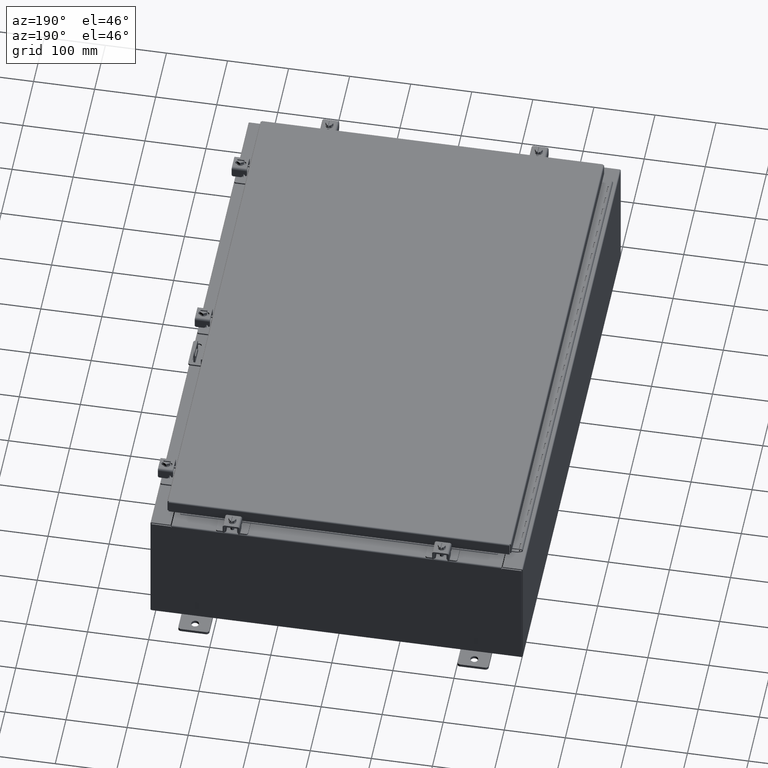
[diagram: clean part render]
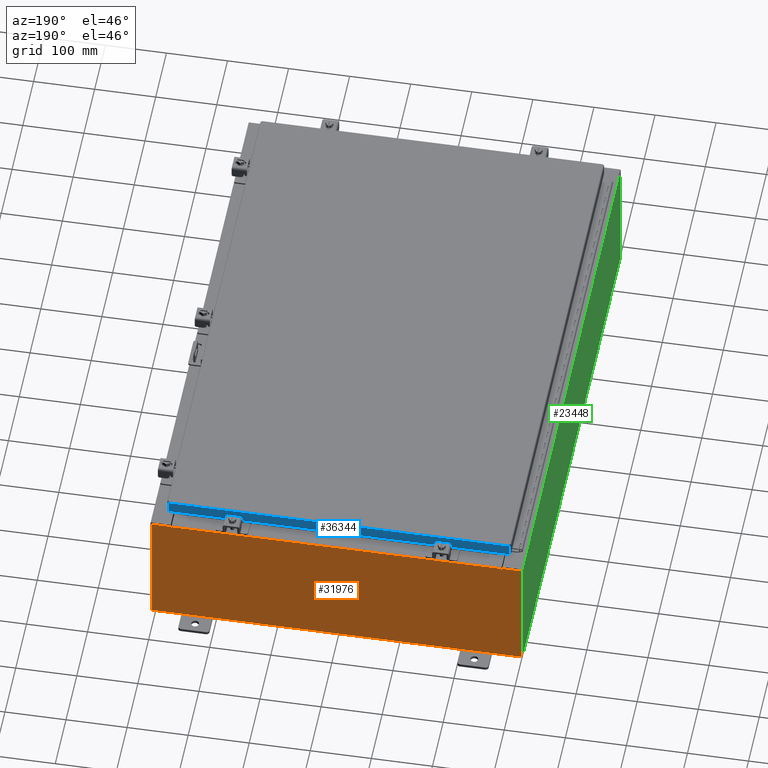
[diagram: same view with three faces highlighted in distinct colors, each labeled with its STEP entity id]
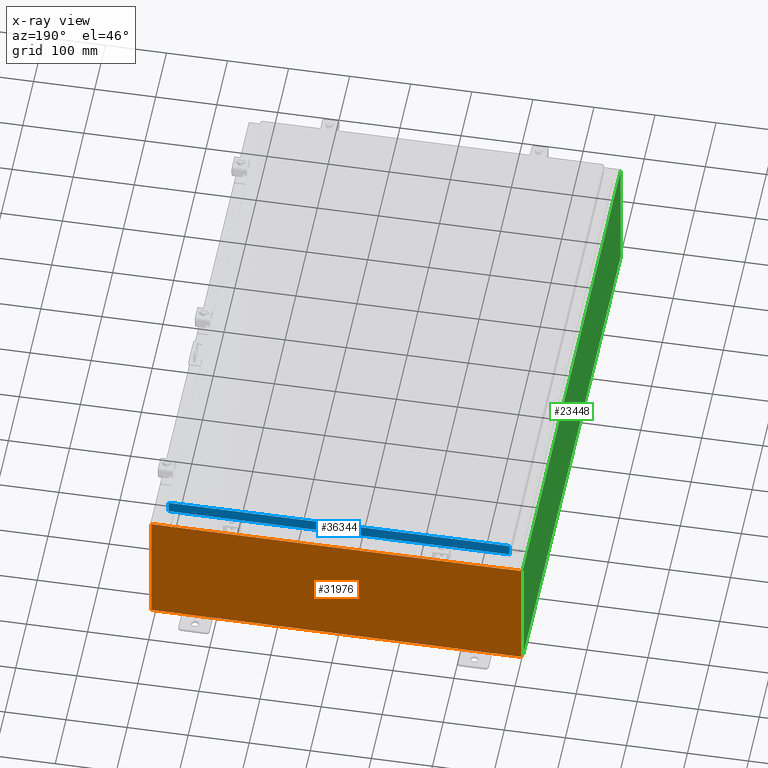
[diagram: x-ray of the same camera — body ghosted, the three highlighted faces saturated]
A machine part, auxiliary view with three faces highlighted in distinct colors.
The next image is the same camera in x-ray (body ghosted, the three faces saturated) — at least one of them is partly hidden behind the body in this view.
Their STEP definitions:

[orange] entity #31976 — the highlighted planar face has unit normal (0, -1, 0).
#120 = CARTESIAN_POINT ( 'NONE',  ( -11.92530000000000000, 0.0000000000000000000, -3.925299999999999600 ) ) ;
#864 = ORIENTED_EDGE ( 'NONE', *, *, #15452, .F. ) ;
#1063 = LINE ( 'NONE', #16594, #17542 ) ;
#1357 = CIRCLE ( 'NONE', #28720, 0.01867499999999949400 ) ;
#3076 = CARTESIAN_POINT ( 'NONE',  ( -10.63720000000000400, 0.0000000000000000000, 3.912300000000000100 ) ) ;
#3334 = CARTESIAN_POINT ( 'NONE',  ( -10.63720000000000400, 0.0000000000000000000, 3.912300000000000100 ) ) ;
#3616 = CARTESIAN_POINT ( 'NONE',  ( -11.92530000000000000, 0.0000000000000000000, 3.925300000000000500 ) ) ;
#4508 = EDGE_CURVE ( 'NONE', #27990, #10835, #40322, .T. ) ;
#4554 = VECTOR ( 'NONE', #40857, 39.37007874015748100 ) ;
#5157 = CARTESIAN_POINT ( 'NONE',  ( -10.67455000000000200, 0.0000000000000000000, 3.925300000000000500 ) ) ;
#6352 = ORIENTED_EDGE ( 'NONE', *, *, #7412, .T. ) ;
#7041 = ORIENTED_EDGE ( 'NONE', *, *, #39987, .F. ) ;
#7412 = EDGE_CURVE ( 'NONE', #26389, #33026, #28859, .T. ) ;
#7454 = CARTESIAN_POINT ( 'NONE',  ( -10.67455000000000200, 0.0000000000000000000, 3.874949999999999200 ) ) ;
#7887 = ORIENTED_EDGE ( 'NONE', *, *, #26998, .T. ) ;
#7890 = AXIS2_PLACEMENT_3D ( 'NONE', #35844, #39313, #19599 ) ;
#7942 = CARTESIAN_POINT ( 'NONE',  ( 11.92530000000000000, 0.0000000000000000000, 3.925300000000000500 ) ) ;
#8385 = ORIENTED_EDGE ( 'NONE', *, *, #10735, .T. ) ;
#9135 = EDGE_CURVE ( 'NONE', #10835, #27346, #13320, .T. ) ;
#9705 = ORIENTED_EDGE ( 'NONE', *, *, #9135, .T. ) ;
#10735 = EDGE_CURVE ( 'NONE', #27346, #14257, #22540, .T. ) ;
#10826 = CARTESIAN_POINT ( 'NONE',  ( 10.67455000000000200, 0.0000000000000000000, 3.874949999999999200 ) ) ;
#10835 = VERTEX_POINT ( 'NONE', #13114 ) ;
#11678 = ORIENTED_EDGE ( 'NONE', *, *, #22322, .T. ) ;
#12185 = DIRECTION ( 'NONE',  ( 0.0000000000000000000, 0.0000000000000000000, 1.000000000000000000 ) ) ;
#12337 = CARTESIAN_POINT ( 'NONE',  ( -11.92530000000000000, 0.0000000000000000000, 3.925300000000000500 ) ) ;
#12573 = DIRECTION ( 'NONE',  ( -4.340572780400004900E-014, 0.0000000000000000000, -1.000000000000000000 ) ) ;
#13106 = VERTEX_POINT ( 'NONE', #7454 ) ;
#13114 = CARTESIAN_POINT ( 'NONE',  ( 11.92530000000000000, 0.0000000000000000000, 3.925300000000000500 ) ) ;
#13320 = LINE ( 'NONE', #7942, #4554 ) ;
#14257 = VERTEX_POINT ( 'NONE', #120 ) ;
#14312 = CARTESIAN_POINT ( 'NONE',  ( 10.67455000000000200, 0.0000000000000000000, 3.925300000000000500 ) ) ;
#14915 = DIRECTION ( 'NONE',  ( -0.0000000000000000000, 1.000000000000000000, -0.0000000000000000000 ) ) ;
#15248 = VERTEX_POINT ( 'NONE', #10826 ) ;
#15452 = EDGE_CURVE ( 'NONE', #25784, #20877, #32124, .T. ) ;
#16319 = PLANE ( 'NONE',  #7890 ) ;
#16477 = LINE ( 'NONE', #35174, #41682 ) ;
#16594 = CARTESIAN_POINT ( 'NONE',  ( -10.67455000000000200, 0.0000000000000000000, 0.0000000000000000000 ) ) ;
#16699 = VECTOR ( 'NONE', #12573, 39.37007874015748100 ) ;
#16735 = CARTESIAN_POINT ( 'NONE',  ( 10.65587500000000200, 0.0000000000000000000, 3.874949999999999200 ) ) ;
#17542 = VECTOR ( 'NONE', #39588, 39.37007874015748100 ) ;
#17724 = VERTEX_POINT ( 'NONE', #23817 ) ;
#18493 = EDGE_CURVE ( 'NONE', #20877, #13106, #1357, .T. ) ;
#18862 = ORIENTED_EDGE ( 'NONE', *, *, #18493, .F. ) ;
#19038 = CARTESIAN_POINT ( 'NONE',  ( 10.67454999999983300, 0.0000000000000000000, -4.633214197254590000E-013 ) ) ;
#19597 = VECTOR ( 'NONE', #32059, 39.37007874015748100 ) ;
#19599 = DIRECTION ( 'NONE',  ( 0.0000000000000000000, -0.0000000000000000000, -1.000000000000000000 ) ) ;
#20025 = DIRECTION ( 'NONE',  ( 0.0000000000000000000, 0.0000000000000000000, -1.000000000000000000 ) ) ;
#20155 = VECTOR ( 'NONE', #26633, 39.37007874015748100 ) ;
#20877 = VERTEX_POINT ( 'NONE', #20880 ) ;
#20880 = CARTESIAN_POINT ( 'NONE',  ( -10.63720000000000400, 0.0000000000000000000, 3.874949999999999200 ) ) ;
#21766 = VECTOR ( 'NONE', #32178, 39.37007874015748100 ) ;
#21883 = CARTESIAN_POINT ( 'NONE',  ( -10.63720000000000400, 0.0000000000000000000, 0.0000000000000000000 ) ) ;
#22322 = EDGE_CURVE ( 'NONE', #25784, #22703, #30919, .T. ) ;
#22367 = EDGE_CURVE ( 'NONE', #15248, #17724, #38618, .T. ) ;
#22509 = ORIENTED_EDGE ( 'NONE', *, *, #22367, .F. ) ;
#22540 = LINE ( 'NONE', #25894, #32311 ) ;
#22583 = DIRECTION ( 'NONE',  ( -1.000000000000000000, -0.0000000000000000000, -0.0000000000000000000 ) ) ;
#22703 = VERTEX_POINT ( 'NONE', #41428 ) ;
#23002 = ORIENTED_EDGE ( 'NONE', *, *, #27597, .F. ) ;
#23204 = VECTOR ( 'NONE', #32814, 39.37007874015748100 ) ;
#23817 = CARTESIAN_POINT ( 'NONE',  ( 10.63720000000000400, 0.0000000000000000000, 3.874949999999999200 ) ) ;
#24447 = EDGE_CURVE ( 'NONE', #27990, #15248, #26453, .T. ) ;
#24568 = ORIENTED_EDGE ( 'NONE', *, *, #24447, .F. ) ;
#25784 = VERTEX_POINT ( 'NONE', #3076 ) ;
#25894 = CARTESIAN_POINT ( 'NONE',  ( -11.92530000000000000, 0.0000000000000000000, -3.925299999999999600 ) ) ;
#26389 = VERTEX_POINT ( 'NONE', #38698 ) ;
#26453 = LINE ( 'NONE', #19038, #16699 ) ;
#26633 = DIRECTION ( 'NONE',  ( 1.000000000000000000, 0.0000000000000000000, 0.0000000000000000000 ) ) ;
#26998 = EDGE_CURVE ( 'NONE', #14257, #26389, #29364, .T. ) ;
#27346 = VERTEX_POINT ( 'NONE', #40411 ) ;
#27597 = EDGE_CURVE ( 'NONE', #17724, #22703, #16477, .T. ) ;
#27990 = VERTEX_POINT ( 'NONE', #14312 ) ;
#28064 = AXIS2_PLACEMENT_3D ( 'NONE', #16735, #39710, #20025 ) ;
#28720 = AXIS2_PLACEMENT_3D ( 'NONE', #34599, #14915, #37895 ) ;
#28726 = CARTESIAN_POINT ( 'NONE',  ( -11.92530000000000000, 0.0000000000000000000, 3.925300000000000500 ) ) ;
#28859 = LINE ( 'NONE', #3616, #20155 ) ;
#29364 = LINE ( 'NONE', #28726, #19597 ) ;
#30919 = LINE ( 'NONE', #3334, #23204 ) ;
#31092 = VECTOR ( 'NONE', #31782, 39.37007874015748100 ) ;
#31782 = DIRECTION ( 'NONE',  ( 0.0000000000000000000, 0.0000000000000000000, -1.000000000000000000 ) ) ;
#31976 = ADVANCED_FACE ( 'NONE', ( #38559 ), #16319, .F. ) ;
#32059 = DIRECTION ( 'NONE',  ( -0.0000000000000000000, -0.0000000000000000000, 1.000000000000000000 ) ) ;
#32124 = LINE ( 'NONE', #21883, #31092 ) ;
#32178 = DIRECTION ( 'NONE',  ( 1.000000000000000000, 0.0000000000000000000, 0.0000000000000000000 ) ) ;
#32311 = VECTOR ( 'NONE', #22583, 39.37007874015748100 ) ;
#32814 = DIRECTION ( 'NONE',  ( 1.000000000000000000, 0.0000000000000000000, 0.0000000000000000000 ) ) ;
#33026 = VERTEX_POINT ( 'NONE', #5157 ) ;
#34599 = CARTESIAN_POINT ( 'NONE',  ( -10.65587500000000200, 0.0000000000000000000, 3.874949999999999200 ) ) ;
#35174 = CARTESIAN_POINT ( 'NONE',  ( 10.63720000000000400, 0.0000000000000000000, 0.0000000000000000000 ) ) ;
#35844 = CARTESIAN_POINT ( 'NONE',  ( 0.0000000000000000000, 0.0000000000000000000, 0.0000000000000000000 ) ) ;
#36310 = EDGE_LOOP ( 'NONE', ( #7041, #18862, #864, #11678, #23002, #22509, #24568, #40575, #9705, #8385, #7887, #6352 ) ) ;
#37895 = DIRECTION ( 'NONE',  ( 0.0000000000000000000, 0.0000000000000000000, -1.000000000000000000 ) ) ;
#38559 = FACE_OUTER_BOUND ( 'NONE', #36310, .T. ) ;
#38618 = CIRCLE ( 'NONE', #28064, 0.01867499999999949400 ) ;
#38698 = CARTESIAN_POINT ( 'NONE',  ( -11.92530000000000000, 0.0000000000000000000, 3.925300000000000500 ) ) ;
#39313 = DIRECTION ( 'NONE',  ( 0.0000000000000000000, -1.000000000000000000, 0.0000000000000000000 ) ) ;
#39588 = DIRECTION ( 'NONE',  ( 0.0000000000000000000, 0.0000000000000000000, 1.000000000000000000 ) ) ;
#39710 = DIRECTION ( 'NONE',  ( -0.0000000000000000000, 1.000000000000000000, -0.0000000000000000000 ) ) ;
#39987 = EDGE_CURVE ( 'NONE', #13106, #33026, #1063, .T. ) ;
#40322 = LINE ( 'NONE', #12337, #21766 ) ;
#40411 = CARTESIAN_POINT ( 'NONE',  ( 11.92530000000000000, 0.0000000000000000000, -3.925299999999999600 ) ) ;
#40575 = ORIENTED_EDGE ( 'NONE', *, *, #4508, .T. ) ;
#40857 = DIRECTION ( 'NONE',  ( 0.0000000000000000000, 0.0000000000000000000, -1.000000000000000000 ) ) ;
#41428 = CARTESIAN_POINT ( 'NONE',  ( 10.63720000000000400, 0.0000000000000000000, 3.912300000000000100 ) ) ;
#41682 = VECTOR ( 'NONE', #12185, 39.37007874015748100 ) ;

[blue] entity #36344 — the highlighted planar face has unit normal (0, -1, -0).
#447 = LINE ( 'NONE', #4744, #25629 ) ;
#495 = PLANE ( 'NONE',  #23407 ) ;
#599 = VERTEX_POINT ( 'NONE', #18817 ) ;
#2016 = ORIENTED_EDGE ( 'NONE', *, *, #18903, .F. ) ;
#3666 = EDGE_CURVE ( 'NONE', #8426, #34463, #26928, .T. ) ;
#4413 = DIRECTION ( 'NONE',  ( -0.0000000000000000000, 2.818880942772350300E-015, -1.000000000000000000 ) ) ;
#4744 = CARTESIAN_POINT ( 'NONE',  ( -11.07800000000000300, 17.09400000000000800, -0.08770000000000026400 ) ) ;
#6344 = CARTESIAN_POINT ( 'NONE',  ( -11.07800000000000300, 17.09400000000000800, -0.8500000000000020900 ) ) ;
#7927 = EDGE_CURVE ( 'NONE', #25370, #599, #9313, .T. ) ;
#8426 = VERTEX_POINT ( 'NONE', #30372 ) ;
#8678 = VECTOR ( 'NONE', #13700, 39.37007874015748100 ) ;
#9313 = LINE ( 'NONE', #39387, #34480 ) ;
#10417 = DIRECTION ( 'NONE',  ( 3.475696988576941300E-031, -1.000000000000000000, -2.818880942772350300E-015 ) ) ;
#10760 = CARTESIAN_POINT ( 'NONE',  ( 10.98915786437626500, 17.09400000000000800, -0.08770000000000026400 ) ) ;
#10911 = EDGE_CURVE ( 'NONE', #35723, #599, #26140, .T. ) ;
#11332 = CARTESIAN_POINT ( 'NONE',  ( -10.98915786437626900, 17.09400000000000800, -0.08770000000000026400 ) ) ;
#13083 = DIRECTION ( 'NONE',  ( 0.0000000000000000000, 2.818880942772350300E-015, -1.000000000000000000 ) ) ;
#13129 = VECTOR ( 'NONE', #27509, 39.37007874015748100 ) ;
#13539 = EDGE_LOOP ( 'NONE', ( #21193, #23854, #22754, #20520, #31598, #2016 ) ) ;
#13700 = DIRECTION ( 'NONE',  ( 1.000000000000000000, -4.379057701015054300E-047, 1.233005954894504400E-016 ) ) ;
#15287 = EDGE_CURVE ( 'NONE', #34463, #35723, #23902, .T. ) ;
#16853 = CARTESIAN_POINT ( 'NONE',  ( -11.07800000000000300, 17.09400000000000800, -0.8500000000000020900 ) ) ;
#17225 = FACE_OUTER_BOUND ( 'NONE', #13539, .T. ) ;
#17282 = EDGE_CURVE ( 'NONE', #25370, #25465, #447, .T. ) ;
#18817 = CARTESIAN_POINT ( 'NONE',  ( 10.98915786437626500, 17.09400000000000800, -0.8499999999999999800 ) ) ;
#18903 = EDGE_CURVE ( 'NONE', #25465, #8426, #31663, .T. ) ;
#20520 = ORIENTED_EDGE ( 'NONE', *, *, #15287, .F. ) ;
#21193 = ORIENTED_EDGE ( 'NONE', *, *, #17282, .F. ) ;
#22754 = ORIENTED_EDGE ( 'NONE', *, *, #10911, .F. ) ;
#22920 = VECTOR ( 'NONE', #4413, 39.37007874015748100 ) ;
#23407 = AXIS2_PLACEMENT_3D ( 'NONE', #36546, #10417, #33398 ) ;
#23854 = ORIENTED_EDGE ( 'NONE', *, *, #7927, .T. ) ;
#23902 = LINE ( 'NONE', #33938, #13129 ) ;
#24072 = CARTESIAN_POINT ( 'NONE',  ( -10.98915786437627200, 17.09400000000000800, -0.07470000000000015500 ) ) ;
#25370 = VERTEX_POINT ( 'NONE', #10760 ) ;
#25465 = VERTEX_POINT ( 'NONE', #11332 ) ;
#25629 = VECTOR ( 'NONE', #27730, 39.37007874015748100 ) ;
#26140 = LINE ( 'NONE', #16853, #8678 ) ;
#26928 = LINE ( 'NONE', #6344, #28973 ) ;
#27509 = DIRECTION ( 'NONE',  ( 1.000000000000000000, -0.0000000000000000000, -0.0000000000000000000 ) ) ;
#27730 = DIRECTION ( 'NONE',  ( -1.000000000000000000, -3.475696988576942200E-031, -9.473942235605600700E-046 ) ) ;
#28973 = VECTOR ( 'NONE', #29305, 39.37007874015748100 ) ;
#29238 = CARTESIAN_POINT ( 'NONE',  ( -10.23915786437626900, 17.09400000000000800, -0.8500000000000032000 ) ) ;
#29305 = DIRECTION ( 'NONE',  ( 1.000000000000000000, -4.379057701015054300E-047, 1.233005954894504400E-016 ) ) ;
#30015 = CARTESIAN_POINT ( 'NONE',  ( 10.23915786437626500, 17.09400000000000800, -0.8500000000000032000 ) ) ;
#30372 = CARTESIAN_POINT ( 'NONE',  ( -10.98915786437627200, 17.09400000000000800, -0.8500000000000020900 ) ) ;
#31598 = ORIENTED_EDGE ( 'NONE', *, *, #3666, .F. ) ;
#31663 = LINE ( 'NONE', #24072, #22920 ) ;
#33398 = DIRECTION ( 'NONE',  ( 0.0000000000000000000, 2.818880942772350300E-015, -1.000000000000000000 ) ) ;
#33938 = CARTESIAN_POINT ( 'NONE',  ( -10.23915786437626900, 17.09400000000000800, -0.8500000000000032000 ) ) ;
#34463 = VERTEX_POINT ( 'NONE', #29238 ) ;
#34480 = VECTOR ( 'NONE', #13083, 39.37007874015748100 ) ;
#35723 = VERTEX_POINT ( 'NONE', #30015 ) ;
#36344 = ADVANCED_FACE ( 'NONE', ( #17225 ), #495, .F. ) ;
#36546 = CARTESIAN_POINT ( 'NONE',  ( 0.0000000000000000000, 17.09400000000000800, 4.808052468849102900E-014 ) ) ;
#39387 = CARTESIAN_POINT ( 'NONE',  ( 10.98915786437626500, 17.09400000000000800, 4.808052468849102900E-014 ) ) ;

[green] entity #23448 — the highlighted planar face has unit normal (1, 0, 0).
#234 = CARTESIAN_POINT ( 'NONE',  ( -12.00000000000000200, 17.92529999999999600, 0.01299999999999985200 ) ) ;
#3265 = CARTESIAN_POINT ( 'NONE',  ( -12.00000000000003000, -17.92530000000000400, 7.837599999999999200 ) ) ;
#3518 = DIRECTION ( 'NONE',  ( -0.0000000000000000000, 1.000000000000000000, -0.0000000000000000000 ) ) ;
#4106 = VECTOR ( 'NONE', #27767, 39.37007874015748100 ) ;
#4771 = ORIENTED_EDGE ( 'NONE', *, *, #11993, .F. ) ;
#4790 = CARTESIAN_POINT ( 'NONE',  ( -12.00000000000000200, -17.92530000000000400, -4.328271664961816700E-014 ) ) ;
#4863 = EDGE_LOOP ( 'NONE', ( #9340, #34225, #4771, #27733 ) ) ;
#5626 = VECTOR ( 'NONE', #6472, 39.37007874015748100 ) ;
#6190 = CARTESIAN_POINT ( 'NONE',  ( -12.00000000000003000, 17.92529999999999600, 7.837599999999999200 ) ) ;
#6472 = DIRECTION ( 'NONE',  ( 0.0000000000000000000, 1.000000000000000000, 0.0000000000000000000 ) ) ;
#8329 = CARTESIAN_POINT ( 'NONE',  ( -12.00000000000000200, 17.92529999999999600, 0.01299999999999983500 ) ) ;
#9340 = ORIENTED_EDGE ( 'NONE', *, *, #41040, .T. ) ;
#11993 = EDGE_CURVE ( 'NONE', #26152, #20288, #13214, .T. ) ;
#13214 = LINE ( 'NONE', #234, #20929 ) ;
#13240 = PLANE ( 'NONE',  #35804 ) ;
#16521 = DIRECTION ( 'NONE',  ( 3.584876173029202900E-015, 0.0000000000000000000, -1.000000000000000000 ) ) ;
#18058 = VERTEX_POINT ( 'NONE', #6190 ) ;
#18780 = LINE ( 'NONE', #36824, #35223 ) ;
#19464 = EDGE_CURVE ( 'NONE', #18058, #20288, #18780, .T. ) ;
#20288 = VERTEX_POINT ( 'NONE', #8329 ) ;
#20929 = VECTOR ( 'NONE', #3518, 39.37007874015748100 ) ;
#22982 = CARTESIAN_POINT ( 'NONE',  ( -12.00000000000000200, 0.0000000000000000000, -4.328271664961816700E-014 ) ) ;
#23448 = ADVANCED_FACE ( 'NONE', ( #26735 ), #13240, .F. ) ;
#26152 = VERTEX_POINT ( 'NONE', #27797 ) ;
#26735 = FACE_OUTER_BOUND ( 'NONE', #4863, .T. ) ;
#27733 = ORIENTED_EDGE ( 'NONE', *, *, #32260, .T. ) ;
#27767 = DIRECTION ( 'NONE',  ( -3.584876173029202900E-015, 0.0000000000000000000, 1.000000000000000000 ) ) ;
#27797 = CARTESIAN_POINT ( 'NONE',  ( -12.00000000000000200, -17.92530000000000400, 0.01299999999999985200 ) ) ;
#32260 = EDGE_CURVE ( 'NONE', #26152, #35108, #39075, .T. ) ;
#33510 = DIRECTION ( 'NONE',  ( 3.584876173029202900E-015, 0.0000000000000000000, -1.000000000000000000 ) ) ;
#34225 = ORIENTED_EDGE ( 'NONE', *, *, #19464, .T. ) ;
#35108 = VERTEX_POINT ( 'NONE', #35377 ) ;
#35223 = VECTOR ( 'NONE', #33510, 39.37007874015748100 ) ;
#35377 = CARTESIAN_POINT ( 'NONE',  ( -12.00000000000003000, -17.92530000000000400, 7.837599999999999200 ) ) ;
#35804 = AXIS2_PLACEMENT_3D ( 'NONE', #22982, #36200, #16521 ) ;
#36200 = DIRECTION ( 'NONE',  ( 1.000000000000000000, 0.0000000000000000000, 3.584876173029202900E-015 ) ) ;
#36824 = CARTESIAN_POINT ( 'NONE',  ( -12.00000000000000200, 17.92529999999999600, -4.328271664961816700E-014 ) ) ;
#39075 = LINE ( 'NONE', #4790, #4106 ) ;
#41040 = EDGE_CURVE ( 'NONE', #35108, #18058, #41636, .T. ) ;
#41636 = LINE ( 'NONE', #3265, #5626 ) ;